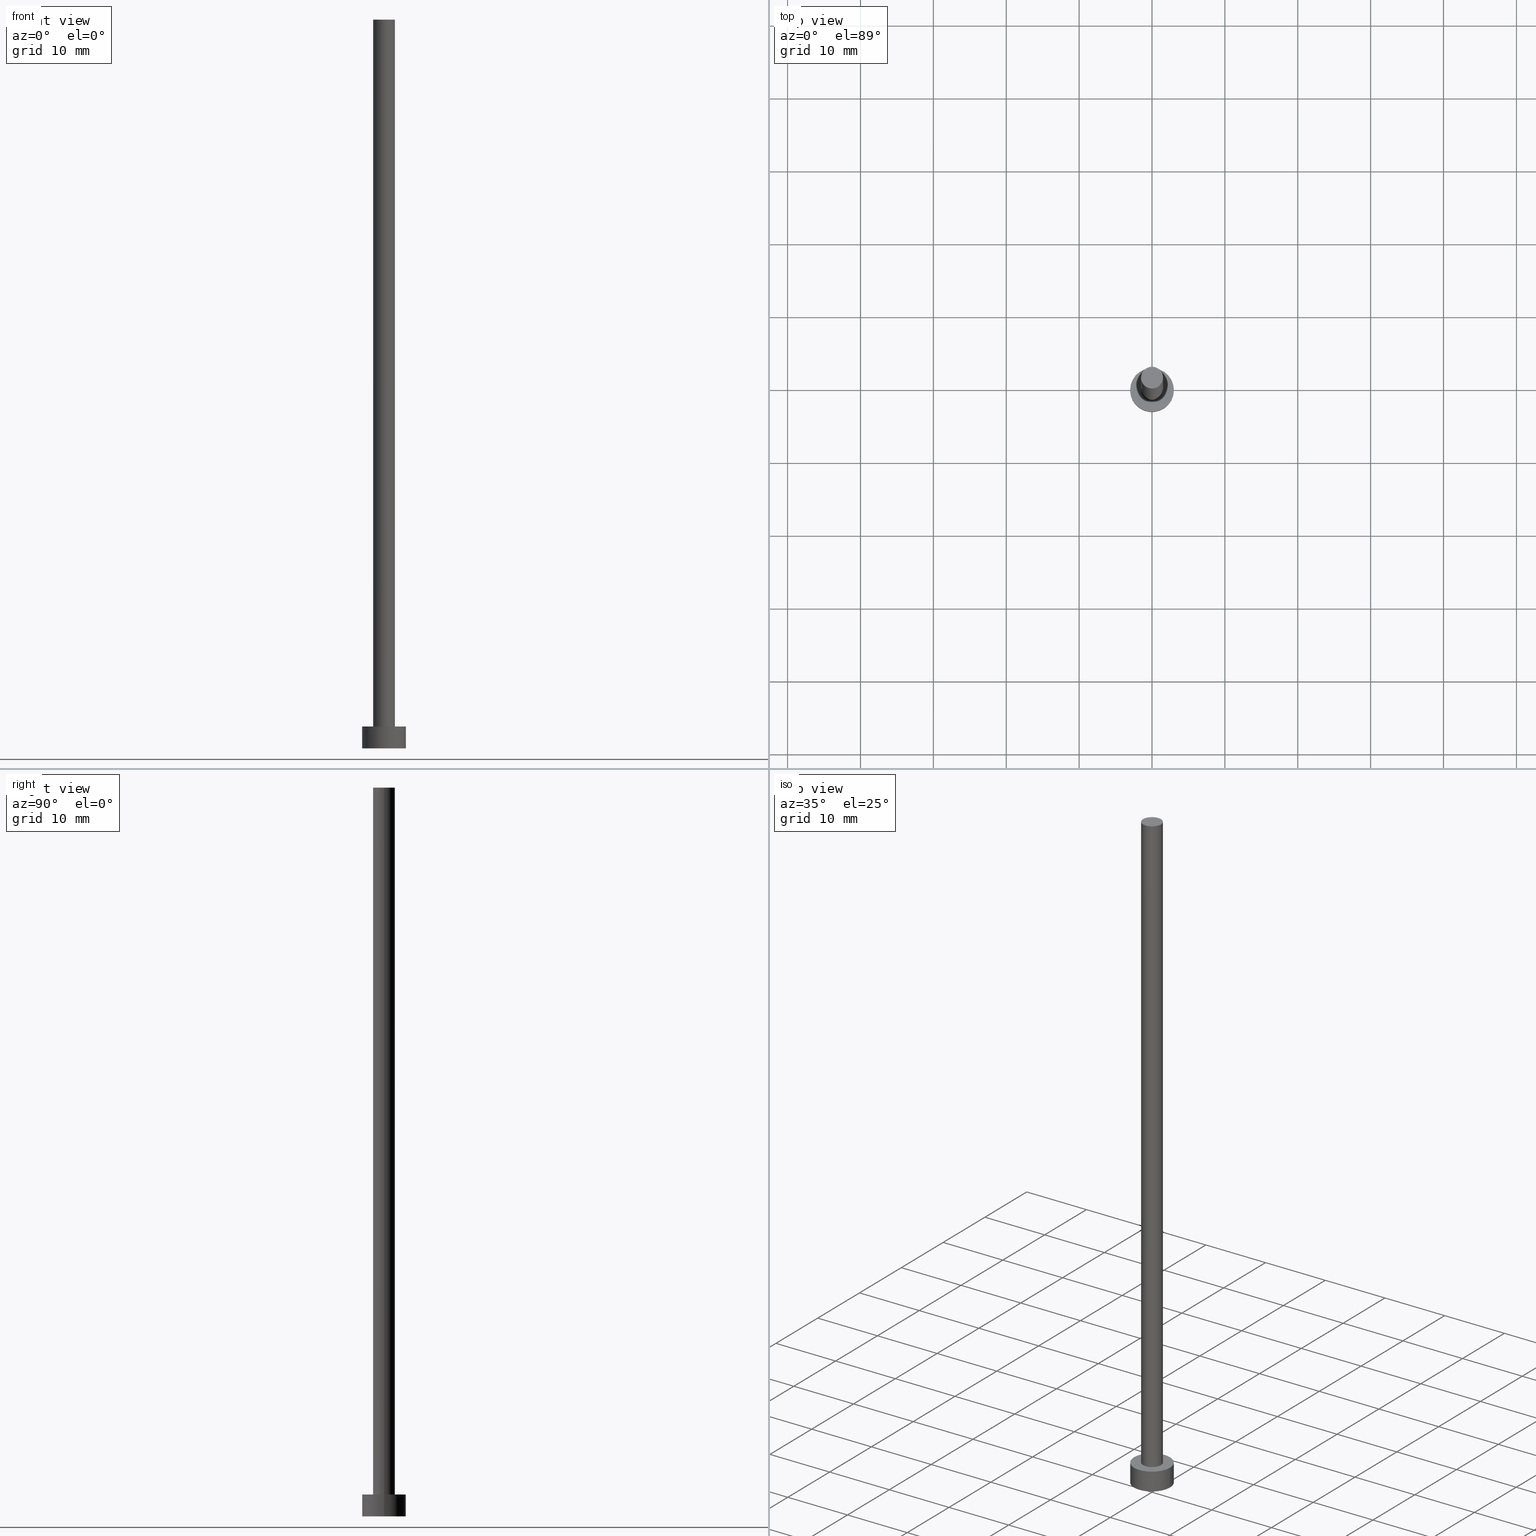
[diagram: canonical four-view strip — front | top / right | iso, engineering-drawing reading convention]
A machine part, canonical four-view strip (front | top / right | iso — engineering-drawing reading convention). The complete STEP part file that produces these views, byte-faithful:
ISO-10303-21;
HEADER;
FILE_DESCRIPTION (( 'STEP AP203' ),
    '1' );
FILE_NAME ('b963.STEP',
    '2023-02-13T17:03:16',
    ( '' ),
    ( '' ),
    'SwSTEP 2.0',
    'SolidWorks 2019',
    '' );
FILE_SCHEMA (( 'CONFIG_CONTROL_DESIGN' ));
ENDSEC;

DATA;
#1 = CARTESIAN_POINT ( 'NONE',  ( 0.000000000000000000, 0.000000000000000000, 3.000000000000000000 ) ) ;
#2 = CALENDAR_DATE ( 2023, 13, 2 ) ;
#3 = ORIENTED_EDGE ( 'NONE', *, *, #37, .F. ) ;
#4 = APPROVAL ( #49, 'NEUR�EN�' ) ;
#5 = LOCAL_TIME ( 18, 3, 16.00000000000000000, #170 ) ;
#6 = CARTESIAN_POINT ( 'NONE',  ( -1.500000000000000222, 0.000000000000000000, 100.0000000000000000 ) ) ;
#7 = APPROVAL_STATUS ( 'not_yet_approved' ) ;
#8 = APPLICATION_PROTOCOL_DEFINITION ( 'international standard', 'config_control_design', 1994, #116 ) ;
#9 = CARTESIAN_POINT ( 'NONE',  ( 0.000000000000000000, 0.000000000000000000, 100.0000000000000000 ) ) ;
#10 = CARTESIAN_POINT ( 'NONE',  ( 0.000000000000000000, 0.000000000000000000, 0.000000000000000000 ) ) ;
#11 = ORIENTED_EDGE ( 'NONE', *, *, #185, .T. ) ;
#12 = DIRECTION ( 'NONE',  ( 1.000000000000000000, 0.000000000000000000, 0.000000000000000000 ) ) ;
#13 = CC_DESIGN_PERSON_AND_ORGANIZATION_ASSIGNMENT ( #190, #20, ( #83 ) ) ;
#14 = CALENDAR_DATE ( 2023, 13, 2 ) ;
#15 = FACE_OUTER_BOUND ( 'NONE', #217, .T. ) ;
#16 = DIRECTION ( 'NONE',  ( -0.000000000000000000, -0.000000000000000000, -1.000000000000000000 ) ) ;
#17 = CALENDAR_DATE ( 2023, 13, 2 ) ;
#18 = ORIENTED_EDGE ( 'NONE', *, *, #37, .T. ) ;
#19 = CARTESIAN_POINT ( 'NONE',  ( -3.000000000000000444, 0.000000000000000000, 0.000000000000000000 ) ) ;
#20 = PERSON_AND_ORGANIZATION_ROLE ( 'design_supplier' ) ;
#21 = COORDINATED_UNIVERSAL_TIME_OFFSET ( 1, 0, .AHEAD. ) ;
#22 = EDGE_CURVE ( 'NONE', #58, #106, #156, .T. ) ;
#23 = CIRCLE ( 'NONE', #57, 1.500000000000000222 ) ;
#24 = DIRECTION ( 'NONE',  ( 0.000000000000000000, 0.000000000000000000, 1.000000000000000000 ) ) ;
#25 = EDGE_CURVE ( 'NONE', #106, #58, #23, .T. ) ;
#26 = ORIENTED_EDGE ( 'NONE', *, *, #200, .F. ) ;
#27 = DIRECTION ( 'NONE',  ( -1.000000000000000000, 0.000000000000000000, 0.000000000000000000 ) ) ;
#28 = CALENDAR_DATE ( 2023, 13, 2 ) ;
#29 = ORIENTED_EDGE ( 'NONE', *, *, #245, .T. ) ;
#30 = PRODUCT_DEFINITION_SHAPE ( 'NONE', 'NONE',  #53 ) ;
#31 = AXIS2_PLACEMENT_3D ( 'NONE', #141, #99, #12 ) ;
#32 = ORIENTED_EDGE ( 'NONE', *, *, #229, .F. ) ;
#33 = ORIENTED_EDGE ( 'NONE', *, *, #22, .T. ) ;
#34 = CALENDAR_DATE ( 2023, 13, 2 ) ;
#35 = PERSON_AND_ORGANIZATION ( #118, #160 ) ;
#36 = LOCAL_TIME ( 18, 3, 16.00000000000000000, #21 ) ;
#37 = EDGE_CURVE ( 'NONE', #237, #220, #135, .T. ) ;
#38 = DIRECTION ( 'NONE',  ( 0.000000000000000000, 0.000000000000000000, 1.000000000000000000 ) ) ;
#39 = DIRECTION ( 'NONE',  ( 0.000000000000000000, 0.000000000000000000, 1.000000000000000000 ) ) ;
#40 = ORIENTED_EDGE ( 'NONE', *, *, #185, .F. ) ;
#41 = CC_DESIGN_PERSON_AND_ORGANIZATION_ASSIGNMENT ( #216, #102, ( #182 ) ) ;
#42 = AXIS2_PLACEMENT_3D ( 'NONE', #164, #214, #138 ) ;
#43 = AXIS2_PLACEMENT_3D ( 'NONE', #189, #236, #209 ) ;
#44 = APPROVAL_PERSON_ORGANIZATION ( #177, #137, #194 ) ;
#45 = ORIENTED_EDGE ( 'NONE', *, *, #187, .T. ) ;
#46 = DIRECTION ( 'NONE',  ( -0.000000000000000000, -0.000000000000000000, -1.000000000000000000 ) ) ;
#47 = ORIENTED_EDGE ( 'NONE', *, *, #206, .T. ) ;
#48 = CARTESIAN_POINT ( 'NONE',  ( 1.500000000000000222, 1.836970198721029934E-16, 100.0000000000000000 ) ) ;
#49 = APPROVAL_STATUS ( 'not_yet_approved' ) ;
#50 = APPROVAL_DATE_TIME ( #67, #4 ) ;
#51 = FACE_OUTER_BOUND ( 'NONE', #195, .T. ) ;
#52 = MECHANICAL_CONTEXT ( 'NONE', #155, 'mechanical' ) ;
#53 = PRODUCT_DEFINITION ( 'NEZN�M�', '', #83, #154 ) ;
#54 = DIRECTION ( 'NONE',  ( 1.000000000000000000, 0.000000000000000000, -0.000000000000000000 ) ) ;
#55 = VECTOR ( 'NONE', #128, 1000.000000000000000 ) ;
#56 = DIRECTION ( 'NONE',  ( -0.000000000000000000, -0.000000000000000000, -1.000000000000000000 ) ) ;
#57 = AXIS2_PLACEMENT_3D ( 'NONE', #60, #163, #250 ) ;
#58 = VERTEX_POINT ( 'NONE', #80 ) ;
#59 = DIRECTION ( 'NONE',  ( 0.000000000000000000, 0.000000000000000000, 1.000000000000000000 ) ) ;
#60 = CARTESIAN_POINT ( 'NONE',  ( 0.000000000000000000, 0.000000000000000000, 3.000000000000000000 ) ) ;
#61 = AXIS2_PLACEMENT_3D ( 'NONE', #203, #153, #131 ) ;
#62 = ORIENTED_EDGE ( 'NONE', *, *, #223, .T. ) ;
#63 = CC_DESIGN_DATE_AND_TIME_ASSIGNMENT ( #123, #100, ( #53 ) ) ;
#64 = PERSON_AND_ORGANIZATION_ROLE ( 'creator' ) ;
#65 = ORIENTED_EDGE ( 'NONE', *, *, #200, .T. ) ;
#66 = CARTESIAN_POINT ( 'NONE',  ( 1.500000000000000222, 1.836970198721029934E-16, 100.0000000000000000 ) ) ;
#67 = DATE_AND_TIME ( #2, #5 ) ;
#68 = DIRECTION ( 'NONE',  ( 0.000000000000000000, 0.000000000000000000, 1.000000000000000000 ) ) ;
#69 = CARTESIAN_POINT ( 'NONE',  ( 3.000000000000000444, 3.673940397442060361E-16, 3.000000000000000000 ) ) ;
#70 = COORDINATED_UNIVERSAL_TIME_OFFSET ( 1, 0, .AHEAD. ) ;
#71 = ADVANCED_FACE ( 'NONE', ( #15 ), #165, .T. ) ;
#72 = APPROVAL_ROLE ( '' ) ;
#73 = PERSON_AND_ORGANIZATION ( #118, #160 ) ;
#74 =( NAMED_UNIT ( * ) PLANE_ANGLE_UNIT ( ) SI_UNIT ( $, .RADIAN. ) );
#75 = CIRCLE ( 'NONE', #186, 1.500000000000000222 ) ;
#76 = AXIS2_PLACEMENT_3D ( 'NONE', #10, #105, #169 ) ;
#77 = AXIS2_PLACEMENT_3D ( 'NONE', #9, #176, #184 ) ;
#78 = LINE ( 'NONE', #84, #104 ) ;
#79 = DIRECTION ( 'NONE',  ( 1.000000000000000000, 0.000000000000000000, 0.000000000000000000 ) ) ;
#80 = CARTESIAN_POINT ( 'NONE',  ( -1.500000000000000222, 0.000000000000000000, 3.000000000000000000 ) ) ;
#81 = COORDINATED_UNIVERSAL_TIME_OFFSET ( 1, 0, .AHEAD. ) ;
#82 = VERTEX_POINT ( 'NONE', #113 ) ;
#83 = PRODUCT_DEFINITION_FORMATION_WITH_SPECIFIED_SOURCE ( 'LIBOVOLN�', '', #91, .NOT_KNOWN. ) ;
#84 = CARTESIAN_POINT ( 'NONE',  ( -3.000000000000000444, 0.000000000000000000, 3.000000000000000000 ) ) ;
#85 = EDGE_LOOP ( 'NONE', ( #103, #167, #47, #210 ) ) ;
#86 = APPROVAL_ROLE ( '' ) ;
#87 = DATE_AND_TIME ( #14, #36 ) ;
#88 = ADVANCED_FACE ( 'NONE', ( #149, #158 ), #222, .T. ) ;
#89 = LOCAL_TIME ( 18, 3, 16.00000000000000000, #70 ) ;
#90 = DATE_TIME_ROLE ( 'classification_date' ) ;
#91 = PRODUCT ( 'b963', 'b963', '', ( #52 ) ) ;
#92 = DIRECTION ( 'NONE',  ( 1.000000000000000000, 0.000000000000000000, -0.000000000000000000 ) ) ;
#93 = PRODUCT_RELATED_PRODUCT_CATEGORY ( 'detail', '', ( #91 ) ) ;
#94 = PLANE ( 'NONE',  #239 ) ;
#95 = EDGE_CURVE ( 'NONE', #82, #58, #114, .T. ) ;
#96 = MANIFOLD_SOLID_BREP ( 'P�idat vysunut�m3', #97 ) ;
#97 = CLOSED_SHELL ( 'NONE', ( #107, #143, #122, #88, #117, #228, #71 ) ) ;
#98 = FACE_OUTER_BOUND ( 'NONE', #188, .T. ) ;
#99 = DIRECTION ( 'NONE',  ( 0.000000000000000000, 0.000000000000000000, 1.000000000000000000 ) ) ;
#100 = DATE_TIME_ROLE ( 'creation_date' ) ;
#101 = ORIENTED_EDGE ( 'NONE', *, *, #95, .T. ) ;
#102 = PERSON_AND_ORGANIZATION_ROLE ( 'classification_officer' ) ;
#103 = ORIENTED_EDGE ( 'NONE', *, *, #223, .F. ) ;
#104 = VECTOR ( 'NONE', #46, 1000.000000000000000 ) ;
#105 = DIRECTION ( 'NONE',  ( 0.000000000000000000, 0.000000000000000000, 1.000000000000000000 ) ) ;
#106 = VERTEX_POINT ( 'NONE', #199 ) ;
#107 = ADVANCED_FACE ( 'NONE', ( #51 ), #180, .T. ) ;
#108 = PERSON_AND_ORGANIZATION ( #118, #160 ) ;
#109 = SECURITY_CLASSIFICATION_LEVEL ( 'unclassified' ) ;
#110 = CARTESIAN_POINT ( 'NONE',  ( 0.000000000000000000, 0.000000000000000000, 100.0000000000000000 ) ) ;
#111 = CYLINDRICAL_SURFACE ( 'NONE', #246, 3.000000000000000444 ) ;
#112 =( LENGTH_UNIT ( ) NAMED_UNIT ( * ) SI_UNIT ( .MILLI., .METRE. ) );
#113 = CARTESIAN_POINT ( 'NONE',  ( -1.500000000000000222, 0.000000000000000000, 100.0000000000000000 ) ) ;
#114 = LINE ( 'NONE', #6, #172 ) ;
#115 = CIRCLE ( 'NONE', #76, 3.000000000000000444 ) ;
#116 = APPLICATION_CONTEXT ( 'configuration controlled 3d designs of mechanical parts and assemblies' ) ;
#117 = ADVANCED_FACE ( 'NONE', ( #130 ), #94, .F. ) ;
#118 = PERSON ( 'NEUR�EN�', 'NEUR�EN�', 'NEUR�EN�', ('NEUR�EN�'), ('NEUR�EN�'), ('NEUR�EN�') ) ;
#119 = VERTEX_POINT ( 'NONE', #226 ) ;
#120 = CARTESIAN_POINT ( 'NONE',  ( 0.000000000000000000, 0.000000000000000000, 3.000000000000000000 ) ) ;
#121 = DIRECTION ( 'NONE',  ( 1.000000000000000000, 0.000000000000000000, 0.000000000000000000 ) ) ;
#122 = ADVANCED_FACE ( 'NONE', ( #225 ), #111, .T. ) ;
#123 = DATE_AND_TIME ( #28, #89 ) ;
#124 = ORIENTED_EDGE ( 'NONE', *, *, #208, .T. ) ;
#125 = LINE ( 'NONE', #140, #201 ) ;
#126 = ORIENTED_EDGE ( 'NONE', *, *, #245, .F. ) ;
#127 = ORIENTED_EDGE ( 'NONE', *, *, #95, .F. ) ;
#128 = DIRECTION ( 'NONE',  ( -0.000000000000000000, -0.000000000000000000, -1.000000000000000000 ) ) ;
#129 = PERSON_AND_ORGANIZATION ( #118, #160 ) ;
#130 = FACE_OUTER_BOUND ( 'NONE', #213, .T. ) ;
#131 = DIRECTION ( 'NONE',  ( 1.000000000000000000, 0.000000000000000000, 0.000000000000000000 ) ) ;
#132 = CARTESIAN_POINT ( 'NONE',  ( 0.000000000000000000, 0.000000000000000000, 0.000000000000000000 ) ) ;
#133 = CC_DESIGN_PERSON_AND_ORGANIZATION_ASSIGNMENT ( #108, #173, ( #53 ) ) ;
#134 = APPROVAL_PERSON_ORGANIZATION ( #129, #161, #72 ) ;
#135 = CIRCLE ( 'NONE', #31, 3.000000000000000444 ) ;
#136 = LOCAL_TIME ( 18, 3, 16.00000000000000000, #221 ) ;
#137 = APPROVAL ( #7, 'NEUR�EN�' ) ;
#138 = DIRECTION ( 'NONE',  ( 1.000000000000000000, 0.000000000000000000, 0.000000000000000000 ) ) ;
#139 = ORIENTED_EDGE ( 'NONE', *, *, #25, .T. ) ;
#140 = CARTESIAN_POINT ( 'NONE',  ( 3.000000000000000444, 3.673940397442060361E-16, 3.000000000000000000 ) ) ;
#141 = CARTESIAN_POINT ( 'NONE',  ( 0.000000000000000000, 0.000000000000000000, 3.000000000000000000 ) ) ;
#142 = CIRCLE ( 'NONE', #193, 3.000000000000000444 ) ;
#143 = ADVANCED_FACE ( 'NONE', ( #98 ), #249, .T. ) ;
#144 = DIRECTION ( 'NONE',  ( -0.000000000000000000, -0.000000000000000000, -1.000000000000000000 ) ) ;
#145 = DIRECTION ( 'NONE',  ( 0.000000000000000000, 0.000000000000000000, 1.000000000000000000 ) ) ;
#146 = ORIENTED_EDGE ( 'NONE', *, *, #22, .F. ) ;
#147 = EDGE_LOOP ( 'NONE', ( #146, #191 ) ) ;
#148 = AXIS2_PLACEMENT_3D ( 'NONE', #120, #16, #27 ) ;
#149 = FACE_BOUND ( 'NONE', #147, .T. ) ;
#150 = APPROVAL_STATUS ( 'not_yet_approved' ) ;
#151 = APPLICATION_PROTOCOL_DEFINITION ( 'international standard', 'config_control_design', 1994, #155 ) ;
#152 = DATE_AND_TIME ( #17, #157 ) ;
#153 = DIRECTION ( 'NONE',  ( 0.000000000000000000, 0.000000000000000000, 1.000000000000000000 ) ) ;
#154 = DESIGN_CONTEXT ( 'detailed design', #116, 'design' ) ;
#155 = APPLICATION_CONTEXT ( 'configuration controlled 3d designs of mechanical parts and assemblies' ) ;
#156 = CIRCLE ( 'NONE', #234, 1.500000000000000222 ) ;
#157 = LOCAL_TIME ( 18, 3, 16.00000000000000000, #81 ) ;
#158 = FACE_OUTER_BOUND ( 'NONE', #231, .T. ) ;
#159 = CIRCLE ( 'NONE', #42, 3.000000000000000444 ) ;
#160 = ORGANIZATION ( 'NEUR�EN�', 'NEUR�EN�', '' ) ;
#161 = APPROVAL ( #150, 'NEUR�EN�' ) ;
#162 = CARTESIAN_POINT ( 'NONE',  ( -3.000000000000000444, 0.000000000000000000, 3.000000000000000000 ) ) ;
#163 = DIRECTION ( 'NONE',  ( 0.000000000000000000, 0.000000000000000000, 1.000000000000000000 ) ) ;
#164 = CARTESIAN_POINT ( 'NONE',  ( 0.000000000000000000, 0.000000000000000000, 0.000000000000000000 ) ) ;
#165 = PLANE ( 'NONE',  #218 ) ;
#166 = SHAPE_DEFINITION_REPRESENTATION ( #30, #240 ) ;
#167 = ORIENTED_EDGE ( 'NONE', *, *, #187, .F. ) ;
#168 = ORIENTED_EDGE ( 'NONE', *, *, #208, .F. ) ;
#169 = DIRECTION ( 'NONE',  ( 1.000000000000000000, 0.000000000000000000, 0.000000000000000000 ) ) ;
#170 = COORDINATED_UNIVERSAL_TIME_OFFSET ( 1, 0, .AHEAD. ) ;
#171 = EDGE_LOOP ( 'NONE', ( #126, #26, #101, #33 ) ) ;
#172 = VECTOR ( 'NONE', #56, 1000.000000000000000 ) ;
#173 = PERSON_AND_ORGANIZATION_ROLE ( 'creator' ) ;
#174 = DIRECTION ( 'NONE',  ( -0.000000000000000000, -0.000000000000000000, -1.000000000000000000 ) ) ;
#175 = CC_DESIGN_APPROVAL ( #137, ( #182 ) ) ;
#176 = DIRECTION ( 'NONE',  ( -0.000000000000000000, -0.000000000000000000, -1.000000000000000000 ) ) ;
#177 = PERSON_AND_ORGANIZATION ( #118, #160 ) ;
#178 = CARTESIAN_POINT ( 'NONE',  ( 0.000000000000000000, 0.000000000000000000, 3.000000000000000000 ) ) ;
#179 = PERSON_AND_ORGANIZATION_ROLE ( 'design_owner' ) ;
#180 = CYLINDRICAL_SURFACE ( 'NONE', #211, 1.500000000000000222 ) ;
#181 = PERSON_AND_ORGANIZATION ( #118, #160 ) ;
#182 = SECURITY_CLASSIFICATION ( '', '', #109 ) ;
#183 = CC_DESIGN_DATE_AND_TIME_ASSIGNMENT ( #87, #90, ( #182 ) ) ;
#184 = DIRECTION ( 'NONE',  ( -1.000000000000000000, 0.000000000000000000, 0.000000000000000000 ) ) ;
#185 = EDGE_CURVE ( 'NONE', #119, #255, #159, .T. ) ;
#186 = AXIS2_PLACEMENT_3D ( 'NONE', #252, #59, #121 ) ;
#187 = EDGE_CURVE ( 'NONE', #220, #237, #142, .T. ) ;
#188 = EDGE_LOOP ( 'NONE', ( #3, #62, #11, #197 ) ) ;
#189 = CARTESIAN_POINT ( 'NONE',  ( 0.000000000000000000, 0.000000000000000000, 100.0000000000000000 ) ) ;
#190 = PERSON_AND_ORGANIZATION ( #118, #160 ) ;
#191 = ORIENTED_EDGE ( 'NONE', *, *, #25, .F. ) ;
#192 = DIRECTION ( 'NONE',  ( 1.000000000000000000, 0.000000000000000000, 0.000000000000000000 ) ) ;
#193 = AXIS2_PLACEMENT_3D ( 'NONE', #230, #39, #192 ) ;
#194 = APPROVAL_ROLE ( '' ) ;
#195 = EDGE_LOOP ( 'NONE', ( #168, #29, #139, #127 ) ) ;
#196 = CC_DESIGN_PERSON_AND_ORGANIZATION_ASSIGNMENT ( #35, #64, ( #83 ) ) ;
#197 = ORIENTED_EDGE ( 'NONE', *, *, #206, .F. ) ;
#198 = APPROVAL_DATE_TIME ( #224, #161 ) ;
#199 = CARTESIAN_POINT ( 'NONE',  ( 1.500000000000000222, 1.836970198721029934E-16, 3.000000000000000000 ) ) ;
#200 = EDGE_CURVE ( 'NONE', #82, #233, #75, .T. ) ;
#201 = VECTOR ( 'NONE', #144, 1000.000000000000000 ) ;
#202 = CARTESIAN_POINT ( 'NONE',  ( 0.000000000000000000, 0.000000000000000000, 3.000000000000000000 ) ) ;
#203 = CARTESIAN_POINT ( 'NONE',  ( 0.000000000000000000, 0.000000000000000000, 0.000000000000000000 ) ) ;
#204 = DIRECTION ( 'NONE',  ( -1.000000000000000000, 0.000000000000000000, 0.000000000000000000 ) ) ;
#205 = CIRCLE ( 'NONE', #43, 1.500000000000000222 ) ;
#206 = EDGE_CURVE ( 'NONE', #220, #255, #78, .T. ) ;
#207 = AXIS2_PLACEMENT_3D ( 'NONE', #178, #68, #92 ) ;
#208 = EDGE_CURVE ( 'NONE', #233, #82, #205, .T. ) ;
#209 = DIRECTION ( 'NONE',  ( 1.000000000000000000, 0.000000000000000000, 0.000000000000000000 ) ) ;
#210 = ORIENTED_EDGE ( 'NONE', *, *, #229, .T. ) ;
#211 = AXIS2_PLACEMENT_3D ( 'NONE', #110, #174, #243 ) ;
#212 =( GEOMETRIC_REPRESENTATION_CONTEXT ( 3 ) GLOBAL_UNCERTAINTY_ASSIGNED_CONTEXT ( ( #251 ) ) GLOBAL_UNIT_ASSIGNED_CONTEXT ( ( #112, #74, #227 ) ) REPRESENTATION_CONTEXT ( 'NONE', 'WORKASPACE' ) );
#213 = EDGE_LOOP ( 'NONE', ( #32, #40 ) ) ;
#214 = DIRECTION ( 'NONE',  ( 0.000000000000000000, 0.000000000000000000, 1.000000000000000000 ) ) ;
#215 = FACE_OUTER_BOUND ( 'NONE', #171, .T. ) ;
#216 = PERSON_AND_ORGANIZATION ( #118, #160 ) ;
#217 = EDGE_LOOP ( 'NONE', ( #65, #124 ) ) ;
#218 = AXIS2_PLACEMENT_3D ( 'NONE', #253, #145, #235 ) ;
#219 = CC_DESIGN_APPROVAL ( #161, ( #83 ) ) ;
#220 = VERTEX_POINT ( 'NONE', #162 ) ;
#221 = COORDINATED_UNIVERSAL_TIME_OFFSET ( 1, 0, .AHEAD. ) ;
#222 = PLANE ( 'NONE',  #207 ) ;
#223 = EDGE_CURVE ( 'NONE', #237, #119, #125, .T. ) ;
#224 = DATE_AND_TIME ( #34, #136 ) ;
#225 = FACE_OUTER_BOUND ( 'NONE', #85, .T. ) ;
#226 = CARTESIAN_POINT ( 'NONE',  ( 3.000000000000000444, 3.673940397442060361E-16, 0.000000000000000000 ) ) ;
#227 =( NAMED_UNIT ( * ) SI_UNIT ( $, .STERADIAN. ) SOLID_ANGLE_UNIT ( ) );
#228 = ADVANCED_FACE ( 'NONE', ( #215 ), #232, .T. ) ;
#229 = EDGE_CURVE ( 'NONE', #255, #119, #115, .T. ) ;
#230 = CARTESIAN_POINT ( 'NONE',  ( 0.000000000000000000, 0.000000000000000000, 3.000000000000000000 ) ) ;
#231 = EDGE_LOOP ( 'NONE', ( #45, #18 ) ) ;
#232 = CYLINDRICAL_SURFACE ( 'NONE', #77, 1.500000000000000222 ) ;
#233 = VERTEX_POINT ( 'NONE', #66 ) ;
#234 = AXIS2_PLACEMENT_3D ( 'NONE', #1, #24, #79 ) ;
#235 = DIRECTION ( 'NONE',  ( 1.000000000000000000, 0.000000000000000000, -0.000000000000000000 ) ) ;
#236 = DIRECTION ( 'NONE',  ( 0.000000000000000000, 0.000000000000000000, 1.000000000000000000 ) ) ;
#237 = VERTEX_POINT ( 'NONE', #69 ) ;
#238 = LINE ( 'NONE', #48, #55 ) ;
#239 = AXIS2_PLACEMENT_3D ( 'NONE', #132, #38, #54 ) ;
#240 = ADVANCED_BREP_SHAPE_REPRESENTATION ( 'b963', ( #96, #61 ), #212 ) ;
#241 = APPROVAL_PERSON_ORGANIZATION ( #73, #4, #86 ) ;
#242 = APPROVAL_DATE_TIME ( #152, #137 ) ;
#243 = DIRECTION ( 'NONE',  ( -1.000000000000000000, 0.000000000000000000, 0.000000000000000000 ) ) ;
#244 = DIRECTION ( 'NONE',  ( -0.000000000000000000, -0.000000000000000000, -1.000000000000000000 ) ) ;
#245 = EDGE_CURVE ( 'NONE', #233, #106, #238, .T. ) ;
#246 = AXIS2_PLACEMENT_3D ( 'NONE', #202, #244, #204 ) ;
#247 = CC_DESIGN_SECURITY_CLASSIFICATION ( #182, ( #83 ) ) ;
#248 = CC_DESIGN_PERSON_AND_ORGANIZATION_ASSIGNMENT ( #181, #179, ( #91 ) ) ;
#249 = CYLINDRICAL_SURFACE ( 'NONE', #148, 3.000000000000000444 ) ;
#250 = DIRECTION ( 'NONE',  ( 1.000000000000000000, 0.000000000000000000, 0.000000000000000000 ) ) ;
#251 = UNCERTAINTY_MEASURE_WITH_UNIT (LENGTH_MEASURE( 1.000000000000000082E-05 ), #112, 'distance_accuracy_value', 'NONE');
#252 = CARTESIAN_POINT ( 'NONE',  ( 0.000000000000000000, 0.000000000000000000, 100.0000000000000000 ) ) ;
#253 = CARTESIAN_POINT ( 'NONE',  ( 0.000000000000000000, 0.000000000000000000, 100.0000000000000000 ) ) ;
#254 = CC_DESIGN_APPROVAL ( #4, ( #53 ) ) ;
#255 = VERTEX_POINT ( 'NONE', #19 ) ;
ENDSEC;
END-ISO-10303-21;
